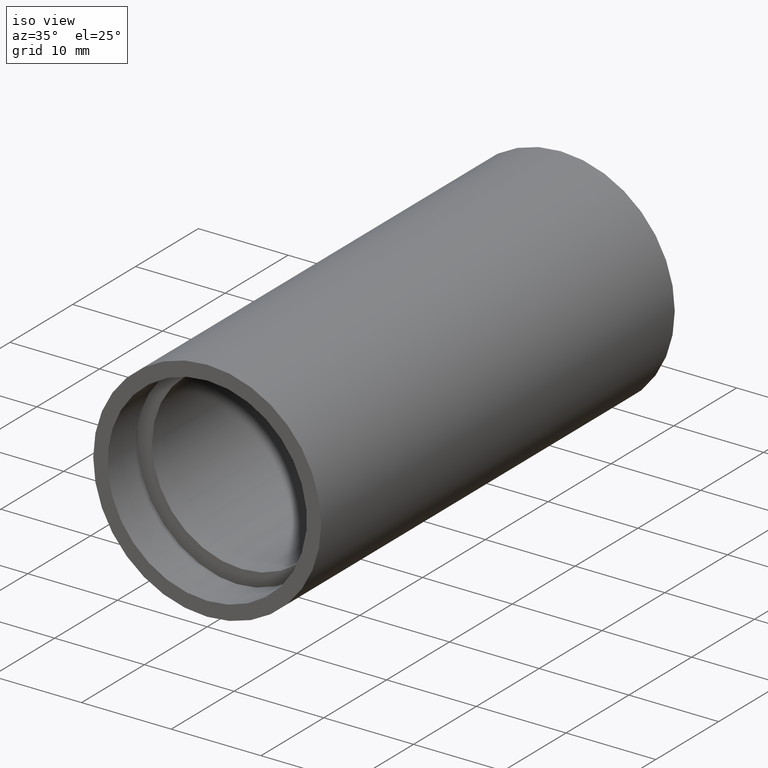
[diagram: clean part render]
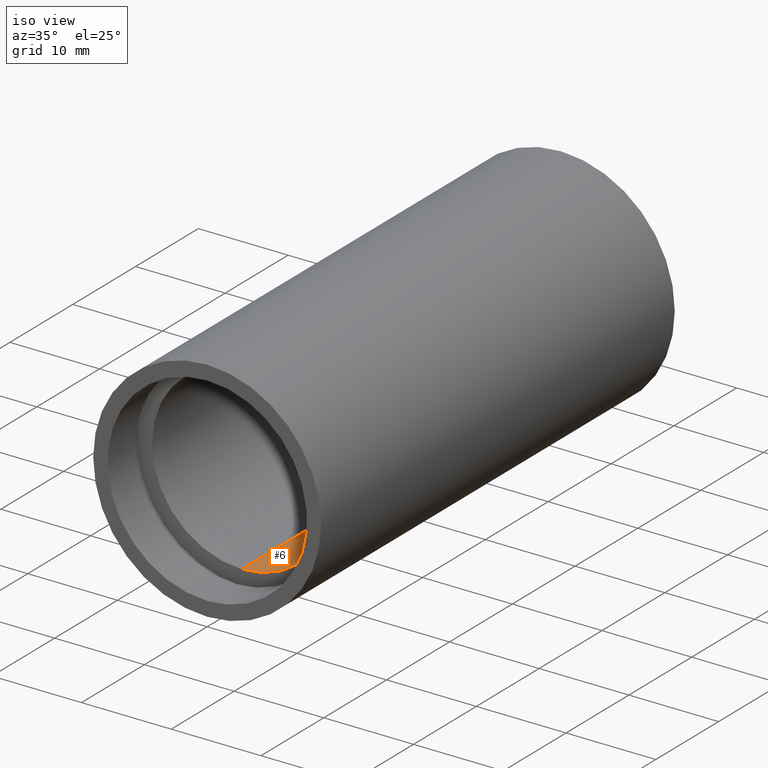
[diagram: same view with one face highlighted and labeled with its STEP entity id]
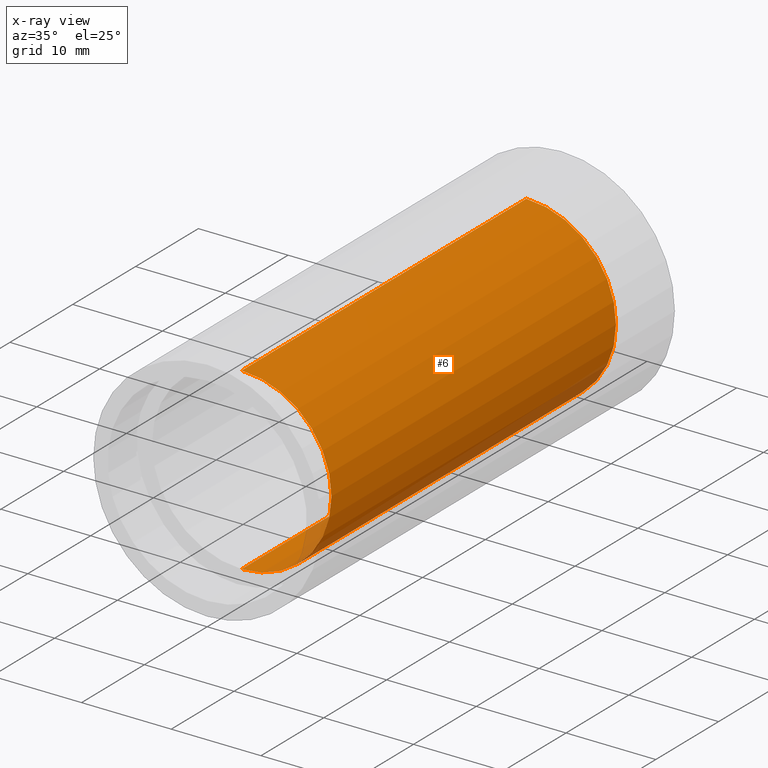
[diagram: x-ray of the same camera — body ghosted, the highlighted face saturated]
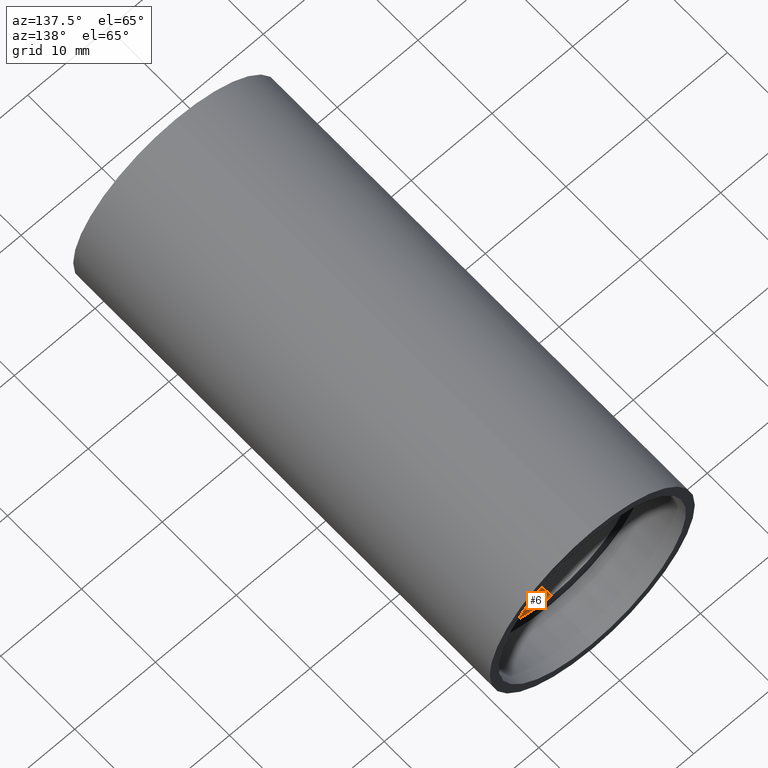
[diagram: same view with one face highlighted and labeled with its STEP entity id]
A machine part, iso view. The second image highlights one B-rep face of the part: STEP entity #6.
The next image is the same camera in x-ray: the body ghosted, the highlighted face saturated — about 5% of this face is hidden behind the body in this view.
A second angle (auxiliary view) of the same face is appended — the face is thin or edge-on in the first view.
In plain terms, the highlighted cylindrical surface (partial cylindrical patch) has radius 10 mm, axis along (-0, 1, -0).
Its self-contained STEP definition (entity closure, byte-faithful):
#6 = ADVANCED_FACE ( 'NONE', ( #461 ), #346, .F. ) ;
#35 = CARTESIAN_POINT ( 'NONE',  ( 0.0000000000000000000, 161.3761669434274500, 10.00000000000002000 ) ) ;
#38 = DIRECTION ( 'NONE',  ( 0.0000000000000000000, 0.0000000000000000000, 1.000000000000000000 ) ) ;
#57 = VERTEX_POINT ( 'NONE', #156 ) ;
#59 = LINE ( 'NONE', #35, #463 ) ;
#79 = EDGE_CURVE ( 'NONE', #435, #57, #600, .T. ) ;
#83 = DIRECTION ( 'NONE',  ( -0.0000000000000000000, 1.000000000000000000, -0.0000000000000000000 ) ) ;
#84 = DIRECTION ( 'NONE',  ( -0.0000000000000000000, 1.000000000000000000, -0.0000000000000000000 ) ) ;
#91 = CIRCLE ( 'NONE', #527, 10.00000000000002000 ) ;
#108 = CARTESIAN_POINT ( 'NONE',  ( 0.0000000000000000000, 50.79999999999998300, 10.00000000000002000 ) ) ;
#111 = DIRECTION ( 'NONE',  ( -0.0000000000000000000, 1.000000000000000000, -0.0000000000000000000 ) ) ;
#142 = CARTESIAN_POINT ( 'NONE',  ( 0.0000000000000000000, 5.499999999999976900, 10.00000000000002000 ) ) ;
#156 = CARTESIAN_POINT ( 'NONE',  ( 1.224646799147355400E-015, 50.79999999999998300, -10.00000000000002000 ) ) ;
#158 = AXIS2_PLACEMENT_3D ( 'NONE', #524, #83, #38 ) ;
#191 = AXIS2_PLACEMENT_3D ( 'NONE', #416, #274, #608 ) ;
#238 = CARTESIAN_POINT ( 'NONE',  ( 1.224646799147355400E-015, 5.499999999999976900, -10.00000000000002000 ) ) ;
#274 = DIRECTION ( 'NONE',  ( -0.0000000000000000000, 1.000000000000000000, -0.0000000000000000000 ) ) ;
#286 = DIRECTION ( 'NONE',  ( -0.0000000000000000000, 1.000000000000000000, -0.0000000000000000000 ) ) ;
#287 = DIRECTION ( 'NONE',  ( 0.0000000000000000000, 0.0000000000000000000, 1.000000000000000000 ) ) ;
#298 = VERTEX_POINT ( 'NONE', #108 ) ;
#325 = ORIENTED_EDGE ( 'NONE', *, *, #79, .F. ) ;
#343 = CARTESIAN_POINT ( 'NONE',  ( 0.0000000000000000000, 5.499999999999976900, 0.0000000000000000000 ) ) ;
#346 = CYLINDRICAL_SURFACE ( 'NONE', #191, 10.00000000000002000 ) ;
#353 = ORIENTED_EDGE ( 'NONE', *, *, #415, .T. ) ;
#385 = VECTOR ( 'NONE', #111, 1000.000000000000000 ) ;
#386 = EDGE_CURVE ( 'NONE', #467, #298, #59, .T. ) ;
#415 = EDGE_CURVE ( 'NONE', #298, #57, #596, .T. ) ;
#416 = CARTESIAN_POINT ( 'NONE',  ( 0.0000000000000000000, 161.3761669434274500, 0.0000000000000000000 ) ) ;
#435 = VERTEX_POINT ( 'NONE', #238 ) ;
#439 = EDGE_CURVE ( 'NONE', #467, #435, #91, .T. ) ;
#448 = CARTESIAN_POINT ( 'NONE',  ( 1.224646799147355400E-015, 161.3761669434274500, -10.00000000000002000 ) ) ;
#461 = FACE_OUTER_BOUND ( 'NONE', #571, .T. ) ;
#463 = VECTOR ( 'NONE', #84, 1000.000000000000000 ) ;
#467 = VERTEX_POINT ( 'NONE', #142 ) ;
#524 = CARTESIAN_POINT ( 'NONE',  ( 0.0000000000000000000, 50.79999999999998300, 0.0000000000000000000 ) ) ;
#527 = AXIS2_PLACEMENT_3D ( 'NONE', #343, #286, #287 ) ;
#533 = ORIENTED_EDGE ( 'NONE', *, *, #439, .F. ) ;
#571 = EDGE_LOOP ( 'NONE', ( #325, #533, #585, #353 ) ) ;
#585 = ORIENTED_EDGE ( 'NONE', *, *, #386, .T. ) ;
#596 = CIRCLE ( 'NONE', #158, 10.00000000000002000 ) ;
#600 = LINE ( 'NONE', #448, #385 ) ;
#608 = DIRECTION ( 'NONE',  ( 0.0000000000000000000, 0.0000000000000000000, 1.000000000000000000 ) ) ;